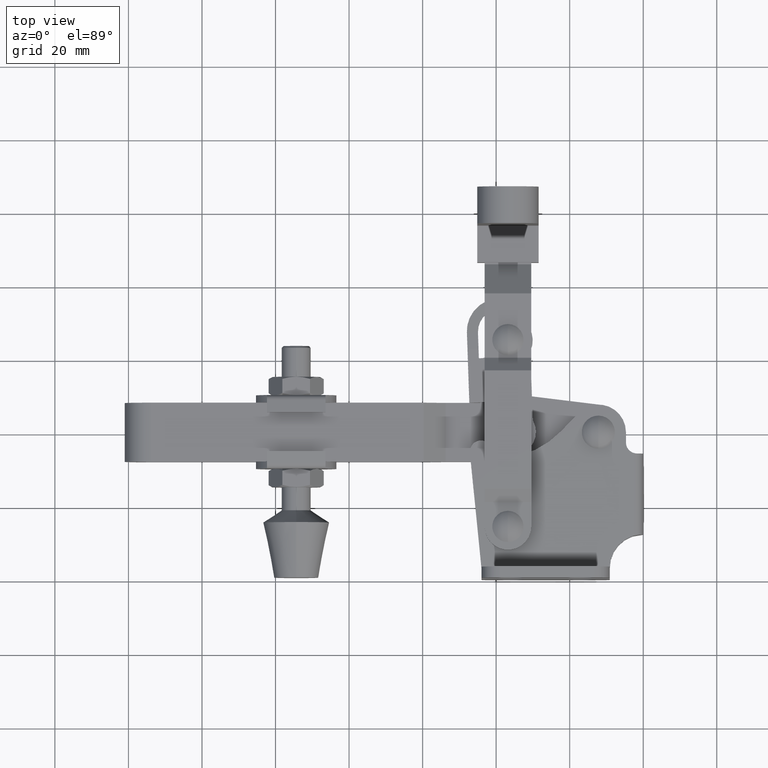
[diagram: clean part render]
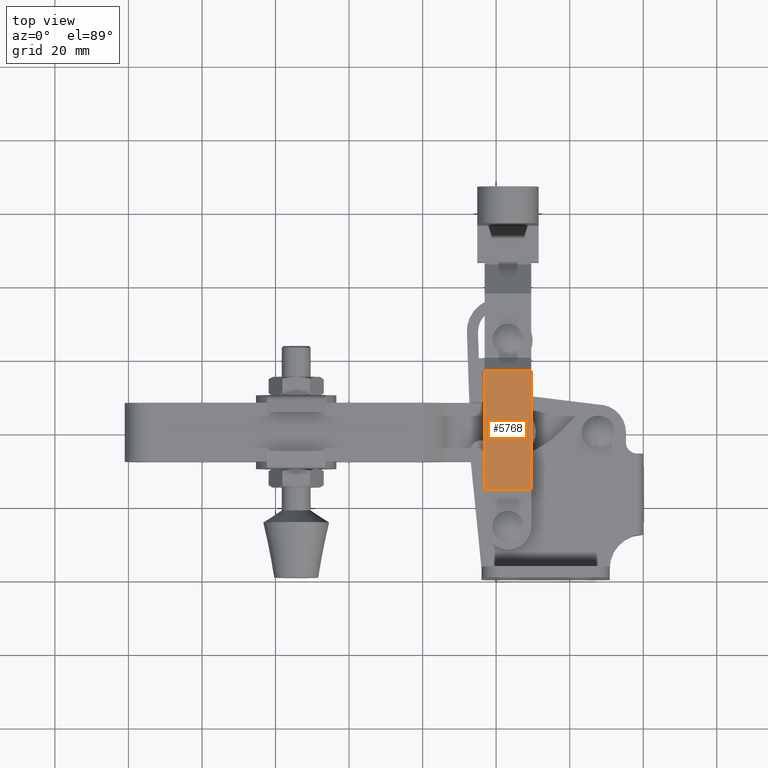
[diagram: same view with one face highlighted and labeled with its STEP entity id]
A machine part, top view. The second image highlights one B-rep face of the part: STEP entity #5768.
In plain terms, the highlighted planar face has unit normal (0, 0, 1).
Its self-contained STEP definition (entity closure, byte-faithful):
#761 = EDGE_CURVE ( 'NONE', #9898, #2501, #8546, .T. ) ;
#766 = EDGE_LOOP ( 'NONE', ( #9774, #2135, #6183, #7412 ) ) ;
#837 = LINE ( 'NONE', #4861, #9761 ) ;
#1140 = EDGE_CURVE ( 'NONE', #11180, #2501, #5965, .T. ) ;
#1304 = DIRECTION ( 'NONE',  ( 1.000000000000000000, 0.0000000000000000000, -1.658530013599391000E-018 ) ) ;
#1337 = DIRECTION ( 'NONE',  ( 1.658530013599391000E-018, 1.915454074022922200E-020, 1.000000000000000000 ) ) ;
#1342 = CARTESIAN_POINT ( 'NONE',  ( -30.45000000000017300, -26.32467528299208600, 11.99999999999996600 ) ) ;
#1450 = VECTOR ( 'NONE', #4930, 1000.000000000000000 ) ;
#1729 = VECTOR ( 'NONE', #4331, 1000.000000000000000 ) ;
#2135 = ORIENTED_EDGE ( 'NONE', *, *, #10670, .F. ) ;
#2158 = PLANE ( 'NONE',  #5648 ) ;
#2501 = VERTEX_POINT ( 'NONE', #8106 ) ;
#2526 = CARTESIAN_POINT ( 'NONE',  ( -43.15000000000017600, -26.32467528299208600, 11.99999999999996600 ) ) ;
#2527 = CARTESIAN_POINT ( 'NONE',  ( -30.45000000000017300, 56.48808167590009100, 11.99999999999996600 ) ) ;
#3759 = CARTESIAN_POINT ( 'NONE',  ( -43.15000000000017600, 24.25302242303876500, 11.99999999999996600 ) ) ;
#3815 = CARTESIAN_POINT ( 'NONE',  ( -30.45000000000017300, 24.25302242303876500, 11.99999999999996600 ) ) ;
#4331 = DIRECTION ( 'NONE',  ( -1.000000000000000000, 0.0000000000000000000, 1.658530013599391000E-018 ) ) ;
#4861 = CARTESIAN_POINT ( 'NONE',  ( -30.45000000000017300, 24.25302242303876500, 11.99999999999996600 ) ) ;
#4930 = DIRECTION ( 'NONE',  ( 0.0000000000000000000, 1.000000000000000000, -1.915454074022858400E-020 ) ) ;
#5009 = CARTESIAN_POINT ( 'NONE',  ( -30.45000000000017300, 56.48808167590009100, 11.99999999999996600 ) ) ;
#5173 = VECTOR ( 'NONE', #7321, 1000.000000000000000 ) ;
#5648 = AXIS2_PLACEMENT_3D ( 'NONE', #1342, #1337, #1304 ) ;
#5768 = ADVANCED_FACE ( 'NONE', ( #6138 ), #2158, .T. ) ;
#5965 = LINE ( 'NONE', #2526, #1450 ) ;
#6138 = FACE_OUTER_BOUND ( 'NONE', #766, .T. ) ;
#6183 = ORIENTED_EDGE ( 'NONE', *, *, #9031, .T. ) ;
#7321 = DIRECTION ( 'NONE',  ( 0.0000000000000000000, 1.000000000000000000, -1.915454074022858400E-020 ) ) ;
#7412 = ORIENTED_EDGE ( 'NONE', *, *, #761, .T. ) ;
#8003 = LINE ( 'NONE', #10906, #5173 ) ;
#8106 = CARTESIAN_POINT ( 'NONE',  ( -43.15000000000017600, 56.48808167590009100, 11.99999999999996600 ) ) ;
#8546 = LINE ( 'NONE', #5009, #1729 ) ;
#9013 = VERTEX_POINT ( 'NONE', #3815 ) ;
#9031 = EDGE_CURVE ( 'NONE', #9013, #9898, #8003, .T. ) ;
#9761 = VECTOR ( 'NONE', #10101, 1000.000000000000000 ) ;
#9774 = ORIENTED_EDGE ( 'NONE', *, *, #1140, .F. ) ;
#9898 = VERTEX_POINT ( 'NONE', #2527 ) ;
#10101 = DIRECTION ( 'NONE',  ( -1.000000000000000000, 0.0000000000000000000, 1.658530013599391000E-018 ) ) ;
#10670 = EDGE_CURVE ( 'NONE', #9013, #11180, #837, .T. ) ;
#10906 = CARTESIAN_POINT ( 'NONE',  ( -30.45000000000017300, -26.32467528299208600, 11.99999999999996600 ) ) ;
#11180 = VERTEX_POINT ( 'NONE', #3759 ) ;